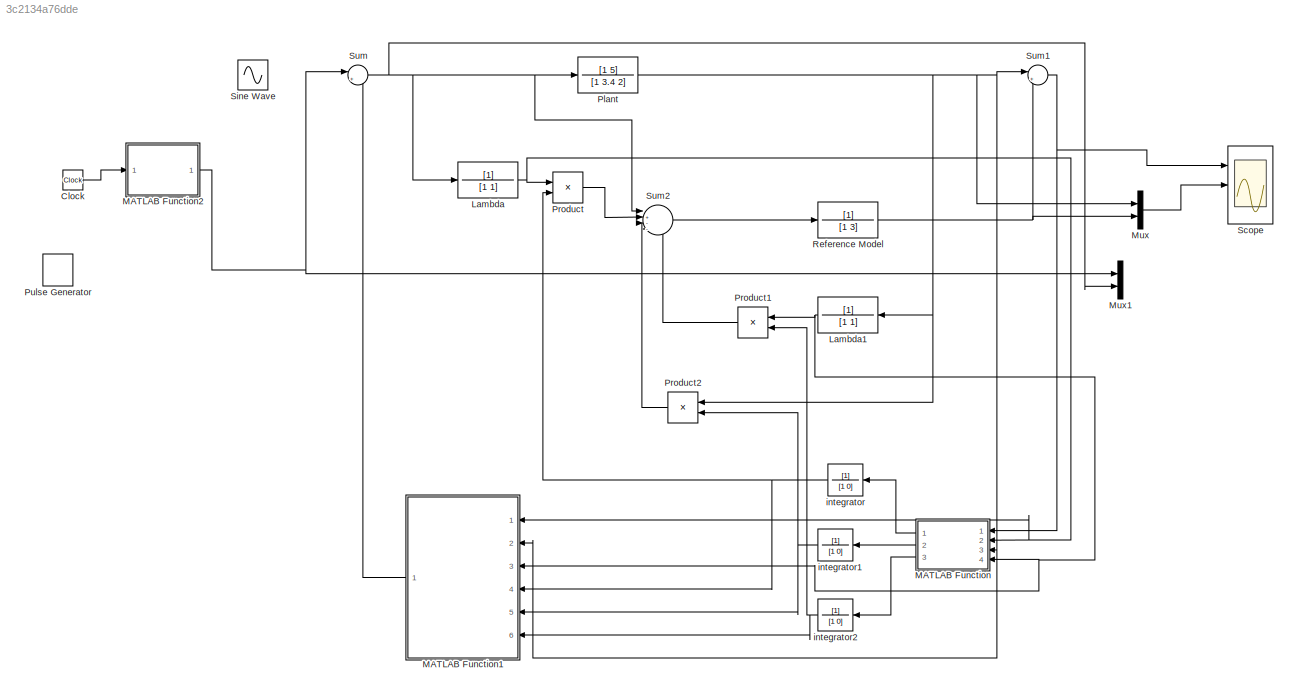
MODEL slx_3c2134a76dde
KIND model
BLOCK [Clock] Clock
BLOCK [TransferFcn] Lambda
  Denominator = [1 1]
BLOCK [TransferFcn] Lambda1
  Denominator = [1 1]
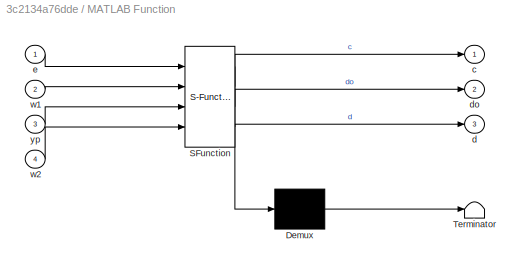
BLOCK [SubSystem] MATLAB Function
  ErrorFcn = Stateflow.Translate.translate
  PermitHierarchicalResolution = ExplicitOnly
  Ports = [4, 3]
  RequestExecContextInheritance = off
  SFBlockType = MATLAB Function
  TreatAsAtomicUnit = on
BLOCK [Demux] MATLAB Function/ Demux 
  Outputs = 1
  Ports = [1, 1]
BLOCK [S-Function] MATLAB Function/ SFunction 
  EnableBusSupport = on
  FunctionName = sf_sfun
  PortCounts = [4 4]
  Ports = [4, 4]
  Tag = Stateflow S-Function Simulation3 2
BLOCK [Terminator] MATLAB Function/ Terminator 
BLOCK [Outport] MATLAB Function/c
  IconDisplay = Port number
BLOCK [Outport] MATLAB Function/d
  IconDisplay = Port number
  Port = 3
BLOCK [Outport] MATLAB Function/do
  IconDisplay = Port number
  Port = 2
BLOCK [Inport] MATLAB Function/e
  IconDisplay = Port number
BLOCK [Inport] MATLAB Function/w1
  IconDisplay = Port number
  Port = 2
BLOCK [Inport] MATLAB Function/w2
  IconDisplay = Port number
  Port = 4
BLOCK [Inport] MATLAB Function/yp
  IconDisplay = Port number
  Port = 3
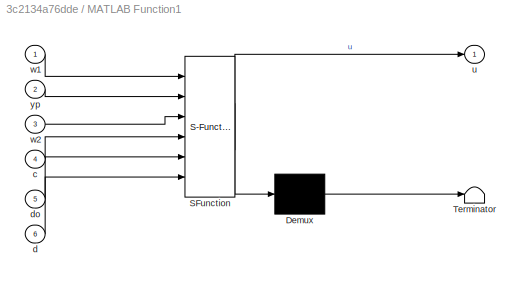
BLOCK [SubSystem] MATLAB Function1
  ErrorFcn = Stateflow.Translate.translate
  PermitHierarchicalResolution = ExplicitOnly
  Ports = [6, 1]
  RequestExecContextInheritance = off
  SFBlockType = MATLAB Function
  TreatAsAtomicUnit = on
BLOCK [Demux] MATLAB Function1/ Demux 
  Outputs = 1
  Ports = [1, 1]
BLOCK [S-Function] MATLAB Function1/ SFunction 
  EnableBusSupport = on
  FunctionName = sf_sfun
  PortCounts = [6 2]
  Ports = [6, 2]
  Tag = Stateflow S-Function Simulation3 1
BLOCK [Terminator] MATLAB Function1/ Terminator 
BLOCK [Inport] MATLAB Function1/c
  IconDisplay = Port number
  Port = 4
BLOCK [Inport] MATLAB Function1/d
  IconDisplay = Port number
  Port = 6
BLOCK [Inport] MATLAB Function1/do
  IconDisplay = Port number
  Port = 5
BLOCK [Outport] MATLAB Function1/u
  IconDisplay = Port number
BLOCK [Inport] MATLAB Function1/w1
  IconDisplay = Port number
BLOCK [Inport] MATLAB Function1/w2
  IconDisplay = Port number
  Port = 3
BLOCK [Inport] MATLAB Function1/yp
  IconDisplay = Port number
  Port = 2
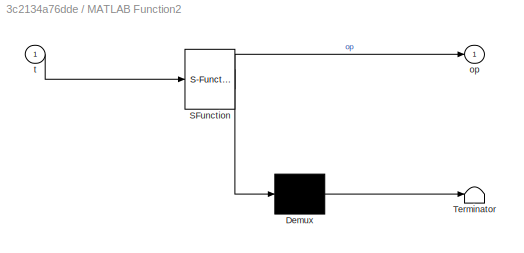
BLOCK [SubSystem] MATLAB Function2
  ErrorFcn = Stateflow.Translate.translate
  PermitHierarchicalResolution = ExplicitOnly
  Ports = [1, 1]
  RequestExecContextInheritance = off
  SFBlockType = MATLAB Function
  TreatAsAtomicUnit = on
BLOCK [Demux] MATLAB Function2/ Demux 
  Outputs = 1
  Ports = [1, 1]
BLOCK [S-Function] MATLAB Function2/ SFunction 
  EnableBusSupport = on
  FunctionName = sf_sfun
  PortCounts = [1 2]
  Ports = [1, 2]
  Tag = Stateflow S-Function Simulation3 3
BLOCK [Terminator] MATLAB Function2/ Terminator 
BLOCK [Outport] MATLAB Function2/op
  IconDisplay = Port number
BLOCK [Inport] MATLAB Function2/t
  IconDisplay = Port number
BLOCK [Mux] Mux
  DisplayOption = bar
  Inputs = 2
  Ports = [2, 1]
BLOCK [Mux] Mux1
  DisplayOption = bar
  Inputs = 2
  Ports = [2, 1]
BLOCK [TransferFcn] Plant
  Denominator = [1 3.4 2]
  Numerator = [1 5]
BLOCK [Product] Product
  InputSameDT = off
  OutDataTypeStr = Inherit: Inherit via internal rule
  Ports = [2, 1]
  RndMeth = Floor
  SaturateOnIntegerOverflow = off
BLOCK [Product] Product1
  InputSameDT = off
  OutDataTypeStr = Inherit: Inherit via internal rule
  Ports = [2, 1]
  RndMeth = Floor
  SaturateOnIntegerOverflow = off
BLOCK [Product] Product2
  InputSameDT = off
  OutDataTypeStr = Inherit: Inherit via internal rule
  Ports = [2, 1]
  RndMeth = Floor
  SaturateOnIntegerOverflow = off
BLOCK [DiscretePulseGenerator] Pulse Generator
  Amplitude = 5
  Period = 0.2
  Ports = [0, 1]
  PulseType = Time based
  PulseWidth = 50
BLOCK [TransferFcn] Reference Model
  Denominator = [1 3]
BLOCK [Scope] Scope
  DataFormat = StructureWithTime
  Floating = off
  LimitDataPoints = off
  NumInputPorts = 3
  Ports = [3]
  SaveToWorkspace = on
  ShowLegends = off
  YMax = 5~5~5
  YMin = -5~-5~-5
BLOCK [Sin] Sine Wave
  Frequency = 0.1*pi
  Ports = [0, 1]
  SampleTime = 0
BLOCK [Sum] Sum
  IconShape = round
  InputSameDT = off
  Inputs = |++
  OutDataTypeStr = Inherit: Inherit via internal rule
  Ports = [2, 1]
  SaturateOnIntegerOverflow = off
BLOCK [Sum] Sum1
  IconShape = round
  InputSameDT = off
  Inputs = |+-
  OutDataTypeStr = Inherit: Inherit via internal rule
  Ports = [2, 1]
  SaturateOnIntegerOverflow = off
BLOCK [Sum] Sum2
  IconShape = round
  InputSameDT = off
  Inputs = |+---
  OutDataTypeStr = Inherit: Inherit via internal rule
  Ports = [4, 1]
  SaturateOnIntegerOverflow = off
BLOCK [TransferFcn] integrator
  Denominator = [1 0]
BLOCK [TransferFcn] integrator1
  Denominator = [1 0]
BLOCK [TransferFcn] integrator2
  Denominator = [1 0]
LINE Clock:1 -> MATLAB Function2:1
NET Lambda1:1 -> MATLAB Function1:3, MATLAB Function:4, Product1:1
NET Lambda:1 -> MATLAB Function1:1, MATLAB Function:2, Product:1
LINE MATLAB Function1:1 -> Sum:2
NET MATLAB Function2:1 -> Mux1:1, Sum:1
LINE MATLAB Function:1 -> integrator:1
LINE MATLAB Function:2 -> integrator1:1
LINE MATLAB Function:3 -> integrator2:1
LINE Mux:1 -> Scope:2
NET Plant:1 -> Lambda1:1, MATLAB Function1:2, MATLAB Function:3, Mux:1, Product2:1, Sum1:1
LINE Product1:1 -> Sum2:4
LINE Product2:1 -> Sum2:3
LINE Product:1 -> Sum2:2
NET Reference Model:1 -> Mux:2, Sum1:2
NET Sum1:1 -> MATLAB Function:1, Scope:1
LINE Sum2:1 -> Reference Model:1
NET Sum:1 -> Lambda:1, Mux1:2, Plant:1, Sum2:1
NET integrator1:1 -> MATLAB Function1:5, Product2:2
NET integrator2:1 -> MATLAB Function1:6, Product1:2
NET integrator:1 -> MATLAB Function1:4, Product:2
note: NET lines group one-source signal fan-out (src -> all destinations, sorted); 1:1 wires keep LINE
